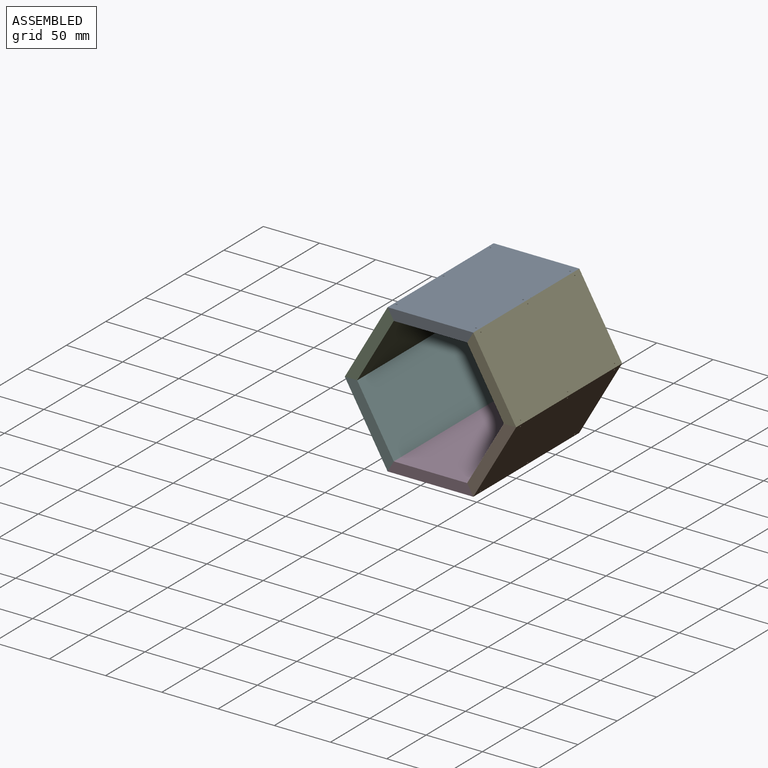
[diagram: assembled view]
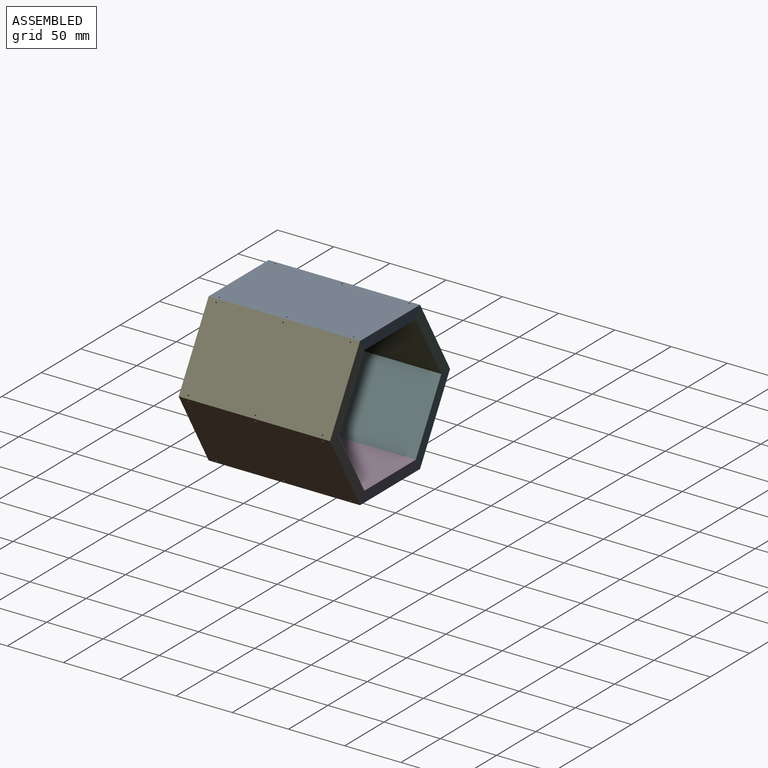
[diagram: assembled view, second angle]
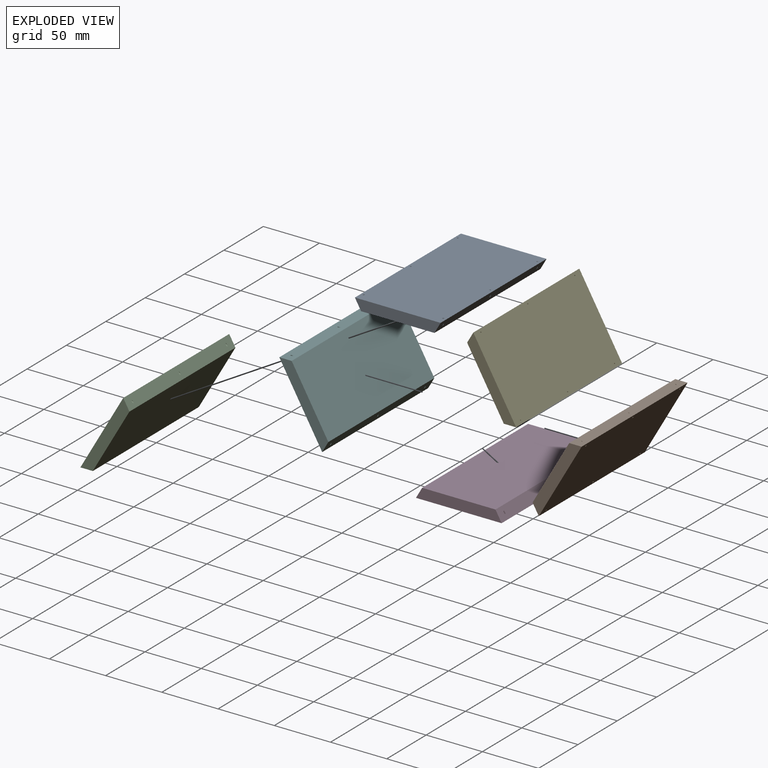
[diagram: exploded view]
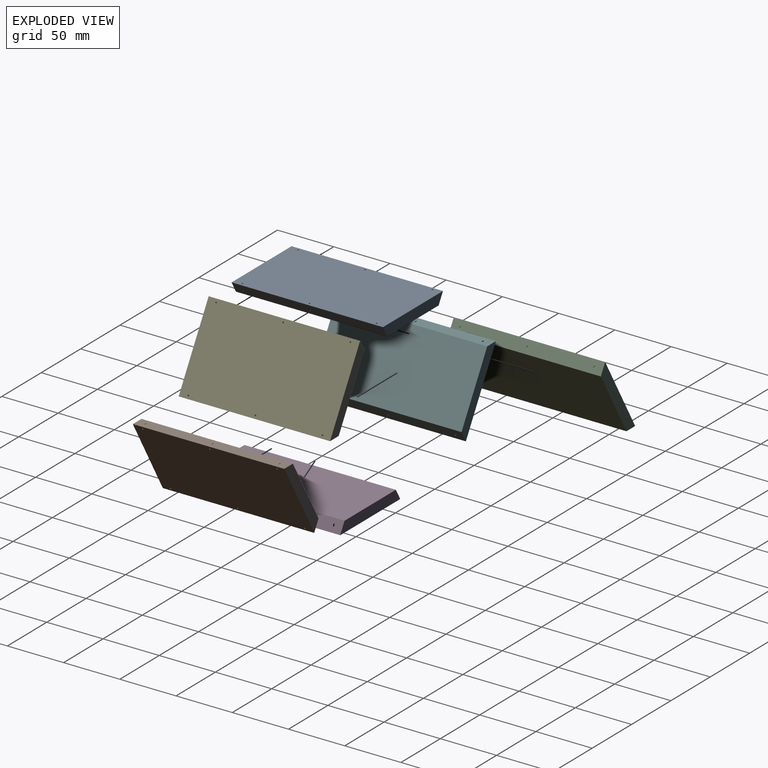
[diagram: exploded view, second angle]
ASSEMBLY  parts=6 mates=6
PART A: 12 faces, bbox 76.7x135.1x10 mm
  f0: plane 134.62x9.53mm, normal (0.87,0,-0.5), area 1473mm2, adj f1,f3,f4,f5,f9,f10,f11
  f1: plane 134.62x76.2mm, normal (0,0,1), area 10250.4mm2, adj f0,f2,f4,f5,f6,f7,f8,f9
  f2: plane 135.08x9.99mm, normal (-0.87,0,-0.5), area 1473mm2, adj f1,f3,f4,f5,f6,f7,f8
  f3: plane 134.62x65.2mm, normal (0,0,-1), area 8777.4mm2, adj f0,f2,f4,f5
  f4: plane 76.2x9.53mm, normal (0,-1,0), area 673.4mm2, adj f0,f1,f2,f3
  f5: plane 76.2x9.53mm, normal (0,1,0), area 673.4mm2, adj f0,f1,f2,f3
  f6: cylinder r=0.64mm len=5.53mm, axis (0,0,-1), area 17.7mm2, adj f1,f2
  f7: cylinder r=0.64mm len=5.53mm, axis (0,0,-1), area 17.7mm2, adj f1,f2
  f8: cylinder r=0.64mm len=5.53mm, axis (0,0,-1), area 17.7mm2, adj f1,f2
  f9: cylinder r=0.64mm len=6.2mm, axis (0,0,-1), area 20.4mm2, adj f0,f1
  f10: cylinder r=0.64mm len=6.2mm, axis (0,0,-1), area 20.4mm2, adj f0,f1
  f11: cylinder r=0.64mm len=6.2mm, axis (0,0,-1), area 20.4mm2, adj f0,f1
PART B: same geometry as A
PART C: same geometry as A
PART D: same geometry as A
PART E: same geometry as A
PART F: same geometry as A
PLACE A t=(-53.34,11.68,0)mm
PLACE B rot(axis=(0.87,0,0.5),180deg) t=(-5.33,-122.94,-83.16)mm
PLACE C rot(axis=(0,-1,0),60deg) t=(-103.13,11.68,-26.69)mm
PLACE D rot(axis=(1,0,0),180deg) t=(-53.34,-122.94,-112.93)mm
PLACE E rot(axis=(-0.5,0,-0.87),180deg) t=(-7.11,-122.94,-26.69)mm
PLACE F rot(axis=(0,-1,0),120deg) t=(-104.91,11.68,-83.16)mm
MATE fastened C.f0 <-> A.f2  axis (0.87,0,0.5) through (-93.22,11.68,9.53)mm
MATE fastened D.f2 <-> F.f2  axis (-0.87,0,0.5) through (-87.72,-122.94,-112.93)mm
MATE fastened F.f0 <-> C.f2  axis (0,0,1) through (-120.32,-122.94,-56.47)mm
MATE fastened B.f0 <-> E.f2  axis (0,0,1) through (10.08,11.68,-56.47)mm
MATE fastened E.f0 <-> A.f0  axis (-0.87,0,0.5) through (-22.52,11.68,0)mm
MATE fastened D.f0 <-> B.f2  axis (0.87,0,0.5) through (-17.02,-122.94,-122.46)mm
